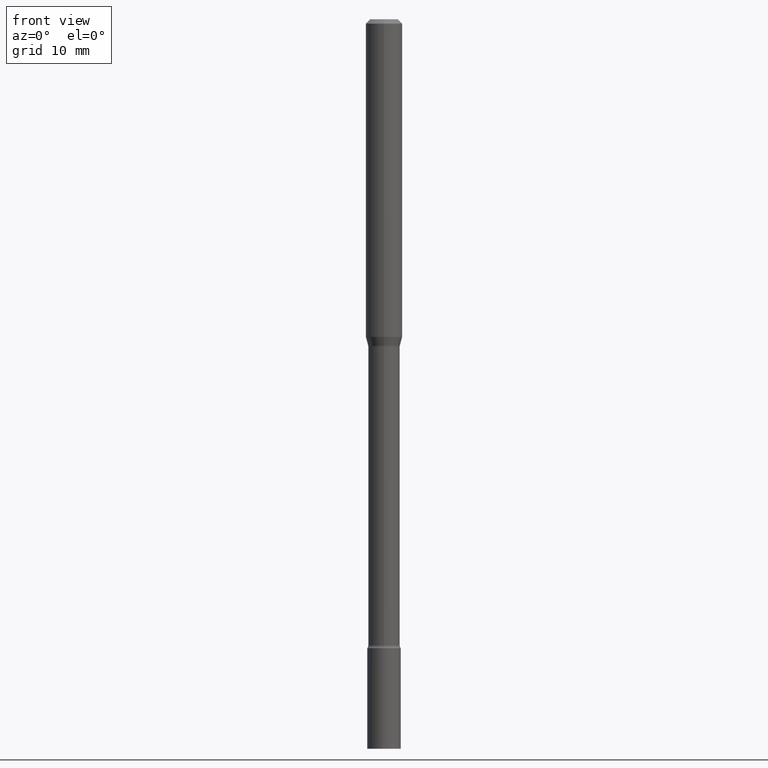
[diagram: clean part render]
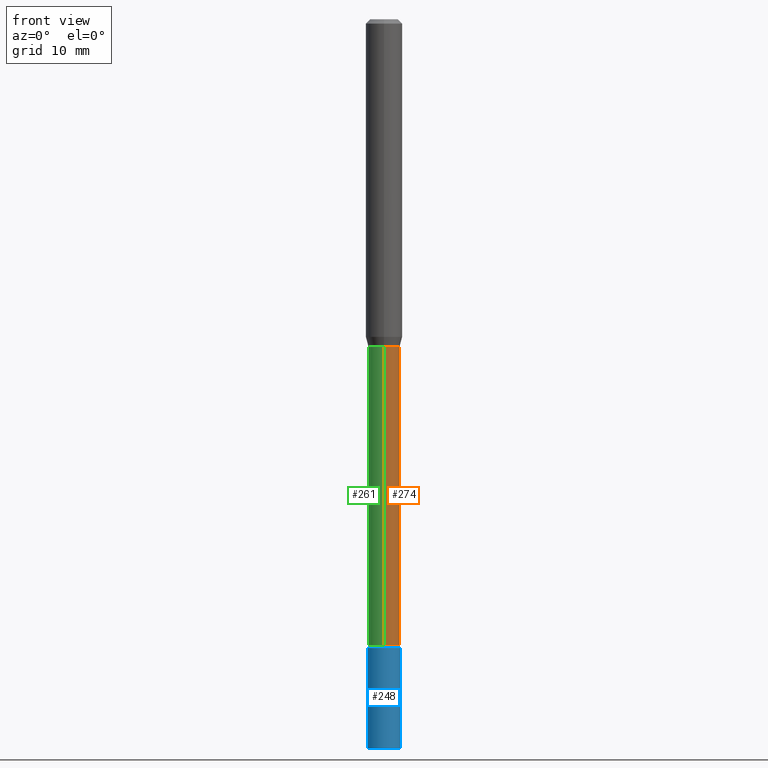
[diagram: same view with three faces highlighted in distinct colors, each labeled with its STEP entity id]
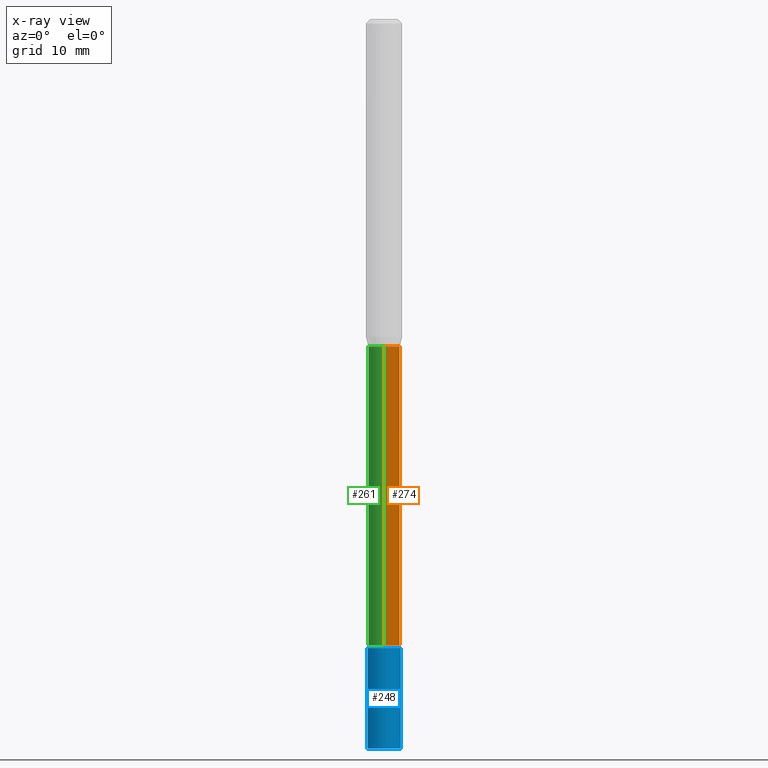
[diagram: x-ray of the same camera — body ghosted, the three highlighted faces saturated]
A machine part, front view with three faces highlighted in distinct colors.
The next image is the same camera in x-ray (body ghosted, the three faces saturated) — at least one of them is partly hidden behind the body in this view.
Their STEP definitions:

[orange] entity #274 — the highlighted cylindrical surface (edge-blend (fillet) strip) has radius 1.3729 mm, axis along (-0, 0, 1).
#9 = EDGE_CURVE ( 'NONE', #115, #444, #269, .T. ) ;
#15 = VECTOR ( 'NONE', #298, 39.37007874015748143 ) ;
#34 = AXIS2_PLACEMENT_3D ( 'NONE', #146, #37, #191 ) ;
#37 = DIRECTION ( 'NONE',  ( -2.445436772389647239E-29, 3.491527213061536699E-15, 1.000000000000000000 ) ) ;
#93 = EDGE_LOOP ( 'NONE', ( #279, #354, #449, #382 ) ) ;
#103 = CIRCLE ( 'NONE', #182, 0.05405000000000000082 ) ;
#105 = CARTESIAN_POINT ( 'NONE',  ( -3.774291327289431232E-16, -0.05405000000000006327, 1.887170458659762766E-16 ) ) ;
#114 = DIRECTION ( 'NONE',  ( -6.982962677686265922E-15, -1.000000000000000000, 2.527148930309216761E-15 ) ) ;
#115 = VERTEX_POINT ( 'NONE', #255 ) ;
#129 = FACE_OUTER_BOUND ( 'NONE', #93, .T. ) ;
#146 = CARTESIAN_POINT ( 'NONE',  ( 5.246511804794628703E-29, -7.490824930300124900E-15, -2.145429341715430649 ) ) ;
#155 = VERTEX_POINT ( 'NONE', #451 ) ;
#159 = DIRECTION ( 'NONE',  ( -2.445436772389647239E-29, 3.491527213061536699E-15, 1.000000000000000000 ) ) ;
#164 = CIRCLE ( 'NONE', #34, 0.05405000000000011878 ) ;
#169 = CARTESIAN_POINT ( 'NONE',  ( 3.840483486783345014E-16, 0.05405000000000006327, -1.887170458659762766E-16 ) ) ;
#174 = VECTOR ( 'NONE', #387, 39.37007874015748143 ) ;
#182 = AXIS2_PLACEMENT_3D ( 'NONE', #370, #456, #114 ) ;
#191 = DIRECTION ( 'NONE',  ( -6.982962677686265922E-15, -1.000000000000000000, 5.054297860618422477E-15 ) ) ;
#239 = DIRECTION ( 'NONE',  ( -6.982962677686265922E-15, -1.000000000000000000, 3.491527213061536699E-15 ) ) ;
#251 = LINE ( 'NONE', #169, #15 ) ;
#255 = CARTESIAN_POINT ( 'NONE',  ( -3.774291327288910583E-16, -0.05405000000000760585, -2.145429341715430205 ) ) ;
#258 = CYLINDRICAL_SURFACE ( 'NONE', #509, 0.05405000000000006327 ) ;
#269 = LINE ( 'NONE', #105, #174 ) ;
#274 = ADVANCED_FACE ( 'NONE', ( #129 ), #258, .T. ) ;
#279 = ORIENTED_EDGE ( 'NONE', *, *, #402, .T. ) ;
#298 = DIRECTION ( 'NONE',  ( -2.445436772389647239E-29, 3.491527213061536699E-15, 1.000000000000000000 ) ) ;
#301 = CARTESIAN_POINT ( 'NONE',  ( 0.000000000000000000, 0.000000000000000000, 0.000000000000000000 ) ) ;
#326 = EDGE_CURVE ( 'NONE', #374, #155, #251, .T. ) ;
#354 = ORIENTED_EDGE ( 'NONE', *, *, #326, .T. ) ;
#370 = CARTESIAN_POINT ( 'NONE',  ( 2.743718402958062645E-29, -3.917405502798830282E-15, -1.121974787463811074 ) ) ;
#374 = VERTEX_POINT ( 'NONE', #411 ) ;
#379 = CARTESIAN_POINT ( 'NONE',  ( -3.774291327289152665E-16, -0.05405000000000392130, -1.121974787463811074 ) ) ;
#382 = ORIENTED_EDGE ( 'NONE', *, *, #9, .F. ) ;
#387 = DIRECTION ( 'NONE',  ( -2.445436772389647239E-29, 3.491527213061536699E-15, 1.000000000000000000 ) ) ;
#402 = EDGE_CURVE ( 'NONE', #115, #374, #164, .T. ) ;
#411 = CARTESIAN_POINT ( 'NONE',  ( 3.963052108702489167E-16, 0.05404999999999263172, -2.145429341715431093 ) ) ;
#444 = VERTEX_POINT ( 'NONE', #379 ) ;
#449 = ORIENTED_EDGE ( 'NONE', *, *, #453, .F. ) ;
#451 = CARTESIAN_POINT ( 'NONE',  ( 3.840483486783868621E-16, 0.05404999999999608035, -1.121974787463811296 ) ) ;
#453 = EDGE_CURVE ( 'NONE', #444, #155, #103, .T. ) ;
#456 = DIRECTION ( 'NONE',  ( -2.445436772389647239E-29, 3.491527213061536699E-15, 1.000000000000000000 ) ) ;
#509 = AXIS2_PLACEMENT_3D ( 'NONE', #301, #159, #239 ) ;

[blue] entity #248 — the highlighted cylindrical surface (edge-blend (fillet) strip) has radius 1.4605 mm, axis along (-0, 0, 1).
#39 = LINE ( 'NONE', #195, #177 ) ;
#53 = DIRECTION ( 'NONE',  ( -2.445468806185136877E-29, 3.491481338843145188E-15, 1.000000000000000000 ) ) ;
#58 = VERTEX_POINT ( 'NONE', #267 ) ;
#59 = ORIENTED_EDGE ( 'NONE', *, *, #121, .T. ) ;
#61 = DIRECTION ( 'NONE',  ( 1.000000000000000000, -6.982962677686256455E-15, 0.000000000000000000 ) ) ;
#109 = DIRECTION ( 'NONE',  ( -2.445468806185136597E-29, 3.491481338843145583E-15, 1.000000000000000000 ) ) ;
#110 = EDGE_LOOP ( 'NONE', ( #398, #59, #395, #148 ) ) ;
#121 = EDGE_CURVE ( 'NONE', #429, #352, #466, .T. ) ;
#141 = EDGE_CURVE ( 'NONE', #352, #58, #39, .T. ) ;
#148 = ORIENTED_EDGE ( 'NONE', *, *, #203, .F. ) ;
#153 = AXIS2_PLACEMENT_3D ( 'NONE', #216, #172, #61 ) ;
#163 = CARTESIAN_POINT ( 'NONE',  ( 0.000000000000000000, 0.000000000000000000, 0.000000000000000000 ) ) ;
#167 = DIRECTION ( 'NONE',  ( 1.000000000000000000, -6.982962677686265922E-15, 4.876176775795935232E-29 ) ) ;
#172 = DIRECTION ( 'NONE',  ( -2.445468806185136597E-29, 3.491481338843145583E-15, 1.000000000000000000 ) ) ;
#177 = VECTOR ( 'NONE', #419, 39.37007874015748143 ) ;
#195 = CARTESIAN_POINT ( 'NONE',  ( 0.05750000000000000250, -4.015203539669603161E-16, 2.803801646082662941E-30 ) ) ;
#203 = EDGE_CURVE ( 'NONE', #507, #58, #392, .T. ) ;
#216 = CARTESIAN_POINT ( 'NONE',  ( 6.113672015462842613E-29, -8.728703347107864943E-15, -2.500000000000000000 ) ) ;
#231 = DIRECTION ( 'NONE',  ( 1.000000000000000000, -6.982962677686273810E-15, 0.000000000000000000 ) ) ;
#245 = CARTESIAN_POINT ( 'NONE',  ( -0.05750000000000000250, -7.717860743095363393E-15, -2.155000000000000249 ) ) ;
#248 = ADVANCED_FACE ( 'NONE', ( #359 ), #448, .T. ) ;
#259 = VECTOR ( 'NONE', #53, 39.37007874015748143 ) ;
#267 = CARTESIAN_POINT ( 'NONE',  ( 0.05750000000000000250, -7.925662639173940169E-15, -2.155000000000000249 ) ) ;
#318 = CARTESIAN_POINT ( 'NONE',  ( -0.05750000000000000250, -7.717860743095363393E-15, -2.500000000000000000 ) ) ;
#338 = LINE ( 'NONE', #415, #259 ) ;
#352 = VERTEX_POINT ( 'NONE', #447 ) ;
#359 = FACE_OUTER_BOUND ( 'NONE', #110, .T. ) ;
#364 = DIRECTION ( 'NONE',  ( -2.445468806185136597E-29, 3.491481338843145583E-15, 1.000000000000000000 ) ) ;
#369 = EDGE_CURVE ( 'NONE', #429, #507, #338, .T. ) ;
#377 = CARTESIAN_POINT ( 'NONE',  ( 5.269985277328969904E-29, -7.524142285206980149E-15, -2.155000000000000249 ) ) ;
#392 = CIRCLE ( 'NONE', #482, 0.05750000000000000250 ) ;
#395 = ORIENTED_EDGE ( 'NONE', *, *, #141, .T. ) ;
#398 = ORIENTED_EDGE ( 'NONE', *, *, #369, .F. ) ;
#415 = CARTESIAN_POINT ( 'NONE',  ( -0.05750000000000000250, 4.085620730620576246E-16, -2.828387676896570712E-30 ) ) ;
#419 = DIRECTION ( 'NONE',  ( -2.445468806185136877E-29, 3.491481338843145188E-15, 1.000000000000000000 ) ) ;
#429 = VERTEX_POINT ( 'NONE', #318 ) ;
#447 = CARTESIAN_POINT ( 'NONE',  ( 0.05750000000000000250, -9.130223701074824963E-15, -2.500000000000000000 ) ) ;
#448 = CYLINDRICAL_SURFACE ( 'NONE', #489, 0.05750000000000000250 ) ;
#466 = CIRCLE ( 'NONE', #153, 0.05750000000000000250 ) ;
#482 = AXIS2_PLACEMENT_3D ( 'NONE', #377, #109, #231 ) ;
#489 = AXIS2_PLACEMENT_3D ( 'NONE', #163, #364, #167 ) ;
#507 = VERTEX_POINT ( 'NONE', #245 ) ;

[green] entity #261 — the highlighted cylindrical surface (edge-blend (fillet) strip) has radius 1.3729 mm, axis along (-0, 0, 1).
#9 = EDGE_CURVE ( 'NONE', #115, #444, #269, .T. ) ;
#12 = DIRECTION ( 'NONE',  ( -6.982962677686265922E-15, -1.000000000000000000, 2.527148930309216761E-15 ) ) ;
#15 = VECTOR ( 'NONE', #298, 39.37007874015748143 ) ;
#25 = ORIENTED_EDGE ( 'NONE', *, *, #412, .T. ) ;
#105 = CARTESIAN_POINT ( 'NONE',  ( -3.774291327289431232E-16, -0.05405000000000006327, 1.887170458659762766E-16 ) ) ;
#115 = VERTEX_POINT ( 'NONE', #255 ) ;
#116 = DIRECTION ( 'NONE',  ( -6.982962677686265922E-15, -1.000000000000000000, 3.491527213061536699E-15 ) ) ;
#155 = VERTEX_POINT ( 'NONE', #451 ) ;
#169 = CARTESIAN_POINT ( 'NONE',  ( 3.840483486783345014E-16, 0.05405000000000006327, -1.887170458659762766E-16 ) ) ;
#174 = VECTOR ( 'NONE', #387, 39.37007874015748143 ) ;
#175 = EDGE_LOOP ( 'NONE', ( #383, #25, #391, #322 ) ) ;
#201 = DIRECTION ( 'NONE',  ( -2.445436772389647239E-29, 3.491527213061536699E-15, 1.000000000000000000 ) ) ;
#202 = DIRECTION ( 'NONE',  ( -2.445436772389647239E-29, 3.491527213061536699E-15, 1.000000000000000000 ) ) ;
#207 = AXIS2_PLACEMENT_3D ( 'NONE', #233, #201, #116 ) ;
#226 = DIRECTION ( 'NONE',  ( -2.445436772389647239E-29, 3.491527213061536699E-15, 1.000000000000000000 ) ) ;
#233 = CARTESIAN_POINT ( 'NONE',  ( 0.000000000000000000, 0.000000000000000000, 0.000000000000000000 ) ) ;
#251 = LINE ( 'NONE', #169, #15 ) ;
#255 = CARTESIAN_POINT ( 'NONE',  ( -3.774291327288910583E-16, -0.05405000000000760585, -2.145429341715430205 ) ) ;
#261 = ADVANCED_FACE ( 'NONE', ( #484 ), #283, .T. ) ;
#269 = LINE ( 'NONE', #105, #174 ) ;
#282 = DIRECTION ( 'NONE',  ( -6.982962677686265922E-15, -1.000000000000000000, 5.054297860618422477E-15 ) ) ;
#283 = CYLINDRICAL_SURFACE ( 'NONE', #207, 0.05405000000000006327 ) ;
#290 = AXIS2_PLACEMENT_3D ( 'NONE', #310, #226, #12 ) ;
#298 = DIRECTION ( 'NONE',  ( -2.445436772389647239E-29, 3.491527213061536699E-15, 1.000000000000000000 ) ) ;
#310 = CARTESIAN_POINT ( 'NONE',  ( 2.743718402958062645E-29, -3.917405502798830282E-15, -1.121974787463811074 ) ) ;
#322 = ORIENTED_EDGE ( 'NONE', *, *, #331, .F. ) ;
#324 = AXIS2_PLACEMENT_3D ( 'NONE', #481, #202, #282 ) ;
#326 = EDGE_CURVE ( 'NONE', #374, #155, #251, .T. ) ;
#331 = EDGE_CURVE ( 'NONE', #155, #444, #343, .T. ) ;
#343 = CIRCLE ( 'NONE', #290, 0.05405000000000000082 ) ;
#356 = CIRCLE ( 'NONE', #324, 0.05405000000000011878 ) ;
#374 = VERTEX_POINT ( 'NONE', #411 ) ;
#379 = CARTESIAN_POINT ( 'NONE',  ( -3.774291327289152665E-16, -0.05405000000000392130, -1.121974787463811074 ) ) ;
#383 = ORIENTED_EDGE ( 'NONE', *, *, #326, .F. ) ;
#387 = DIRECTION ( 'NONE',  ( -2.445436772389647239E-29, 3.491527213061536699E-15, 1.000000000000000000 ) ) ;
#391 = ORIENTED_EDGE ( 'NONE', *, *, #9, .T. ) ;
#411 = CARTESIAN_POINT ( 'NONE',  ( 3.963052108702489167E-16, 0.05404999999999263172, -2.145429341715431093 ) ) ;
#412 = EDGE_CURVE ( 'NONE', #374, #115, #356, .T. ) ;
#444 = VERTEX_POINT ( 'NONE', #379 ) ;
#451 = CARTESIAN_POINT ( 'NONE',  ( 3.840483486783868621E-16, 0.05404999999999608035, -1.121974787463811296 ) ) ;
#481 = CARTESIAN_POINT ( 'NONE',  ( 5.246511804794628703E-29, -7.490824930300124900E-15, -2.145429341715430649 ) ) ;
#484 = FACE_OUTER_BOUND ( 'NONE', #175, .T. ) ;